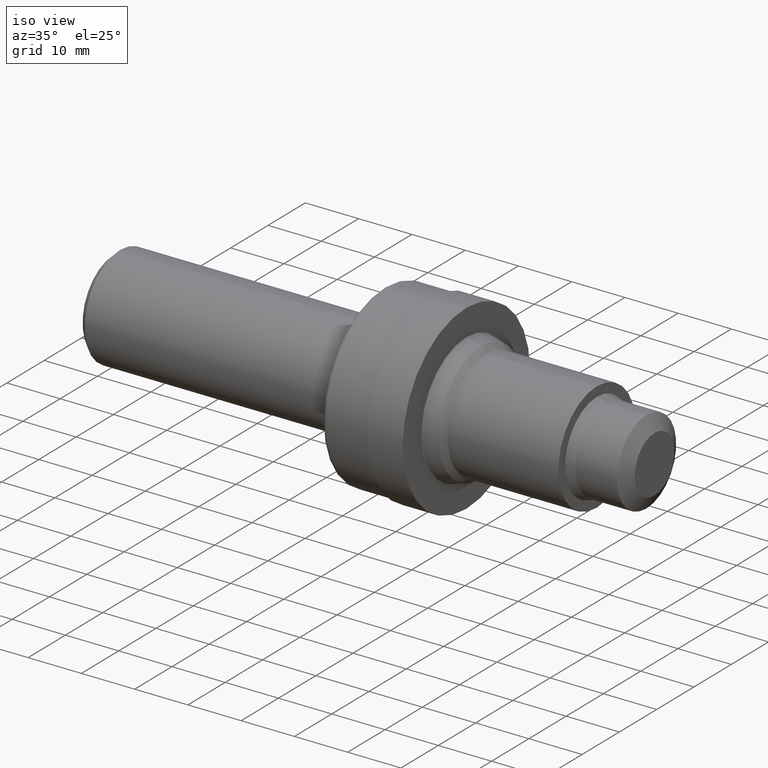
[diagram: clean part render]
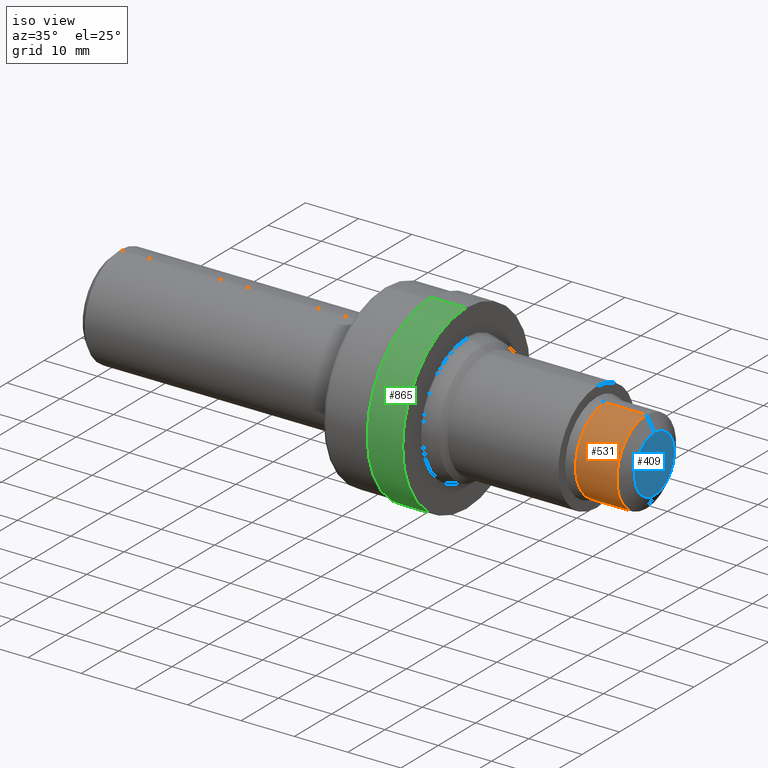
[diagram: same view with three faces highlighted in distinct colors, each labeled with its STEP entity id]
A machine part, iso view with three faces highlighted in distinct colors.
Their STEP definitions:

[orange] entity #531 — the highlighted cylindrical surface (partial cylindrical patch) has radius 7.9477 mm, axis along (-1, -0, -0).
#9 = LINE ( 'NONE', #399, #372 ) ;
#63 = ORIENTED_EDGE ( 'NONE', *, *, #222, .F. ) ;
#92 = ORIENTED_EDGE ( 'NONE', *, *, #167, .T. ) ;
#101 = VERTEX_POINT ( 'NONE', #425 ) ;
#102 = CARTESIAN_POINT ( 'NONE',  ( 3.939999999999999947, 0.0000000000000000000, 0.0000000000000000000 ) ) ;
#108 = DIRECTION ( 'NONE',  ( -1.000000000000000000, -0.0000000000000000000, -0.0000000000000000000 ) ) ;
#143 = CYLINDRICAL_SURFACE ( 'NONE', #452, 0.3129000000000000115 ) ;
#161 = FACE_OUTER_BOUND ( 'NONE', #380, .T. ) ;
#167 = EDGE_CURVE ( 'NONE', #310, #797, #661, .T. ) ;
#171 = DIRECTION ( 'NONE',  ( 0.0000000000000000000, 0.0000000000000000000, 1.000000000000000000 ) ) ;
#205 = CARTESIAN_POINT ( 'NONE',  ( 3.634999999999999787, 0.0000000000000000000, 0.3129000000000000115 ) ) ;
#222 = EDGE_CURVE ( 'NONE', #101, #638, #227, .T. ) ;
#227 = CIRCLE ( 'NONE', #483, 0.3129000000000000115 ) ;
#242 = CARTESIAN_POINT ( 'NONE',  ( 3.939999999999999947, 0.0000000000000000000, 0.3129000000000000115 ) ) ;
#251 = DIRECTION ( 'NONE',  ( -1.000000000000000000, -0.0000000000000000000, -0.0000000000000000000 ) ) ;
#253 = LINE ( 'NONE', #586, #375 ) ;
#298 = ORIENTED_EDGE ( 'NONE', *, *, #488, .F. ) ;
#310 = VERTEX_POINT ( 'NONE', #788 ) ;
#354 = AXIS2_PLACEMENT_3D ( 'NONE', #102, #578, #171 ) ;
#372 = VECTOR ( 'NONE', #459, 39.37007874015748143 ) ;
#375 = VECTOR ( 'NONE', #580, 39.37007874015748143 ) ;
#380 = EDGE_LOOP ( 'NONE', ( #298, #92, #650, #63 ) ) ;
#394 = CARTESIAN_POINT ( 'NONE',  ( 0.0000000000000000000, 0.0000000000000000000, 0.0000000000000000000 ) ) ;
#399 = CARTESIAN_POINT ( 'NONE',  ( 0.0000000000000000000, 3.831919834532068082E-17, -0.3129000000000000115 ) ) ;
#425 = CARTESIAN_POINT ( 'NONE',  ( 3.634999999999999787, 3.831919834532068082E-17, -0.3129000000000000115 ) ) ;
#452 = AXIS2_PLACEMENT_3D ( 'NONE', #394, #108, #786 ) ;
#459 = DIRECTION ( 'NONE',  ( -1.000000000000000000, -0.0000000000000000000, -0.0000000000000000000 ) ) ;
#483 = AXIS2_PLACEMENT_3D ( 'NONE', #649, #251, #713 ) ;
#488 = EDGE_CURVE ( 'NONE', #310, #101, #9, .T. ) ;
#531 = ADVANCED_FACE ( 'NONE', ( #161 ), #143, .T. ) ;
#578 = DIRECTION ( 'NONE',  ( -1.000000000000000000, -0.0000000000000000000, -0.0000000000000000000 ) ) ;
#580 = DIRECTION ( 'NONE',  ( -1.000000000000000000, -0.0000000000000000000, -0.0000000000000000000 ) ) ;
#586 = CARTESIAN_POINT ( 'NONE',  ( 0.0000000000000000000, 0.0000000000000000000, 0.3129000000000000115 ) ) ;
#638 = VERTEX_POINT ( 'NONE', #205 ) ;
#649 = CARTESIAN_POINT ( 'NONE',  ( 3.634999999999999787, 0.0000000000000000000, 0.0000000000000000000 ) ) ;
#650 = ORIENTED_EDGE ( 'NONE', *, *, #844, .T. ) ;
#661 = CIRCLE ( 'NONE', #354, 0.3129000000000000115 ) ;
#713 = DIRECTION ( 'NONE',  ( 0.0000000000000000000, 0.0000000000000000000, 1.000000000000000000 ) ) ;
#786 = DIRECTION ( 'NONE',  ( 0.0000000000000000000, 0.0000000000000000000, 1.000000000000000000 ) ) ;
#788 = CARTESIAN_POINT ( 'NONE',  ( 3.939999999999999947, 3.831919834532068698E-17, -0.3129000000000000115 ) ) ;
#797 = VERTEX_POINT ( 'NONE', #242 ) ;
#844 = EDGE_CURVE ( 'NONE', #797, #638, #253, .T. ) ;

[blue] entity #409 — the highlighted planar face has unit normal (-1, 0, -0).
#16 = CARTESIAN_POINT ( 'NONE',  ( 4.000000000000000000, 0.0000000000000000000, 0.2089769515458670124 ) ) ;
#28 = EDGE_LOOP ( 'NONE', ( #739, #575 ) ) ;
#52 = VERTEX_POINT ( 'NONE', #16 ) ;
#91 = DIRECTION ( 'NONE',  ( 0.0000000000000000000, 0.0000000000000000000, 1.000000000000000000 ) ) ;
#93 = EDGE_CURVE ( 'NONE', #725, #52, #699, .T. ) ;
#120 = FACE_OUTER_BOUND ( 'NONE', #28, .T. ) ;
#160 = CARTESIAN_POINT ( 'NONE',  ( 4.000000000000000000, 0.0000000000000000000, 0.0000000000000000000 ) ) ;
#190 = AXIS2_PLACEMENT_3D ( 'NONE', #731, #870, #474 ) ;
#409 = ADVANCED_FACE ( 'NONE', ( #120 ), #864, .F. ) ;
#421 = AXIS2_PLACEMENT_3D ( 'NONE', #160, #569, #91 ) ;
#423 = CARTESIAN_POINT ( 'NONE',  ( 4.000000000000000000, 3.195574691297121665E-17, -0.2089769515458670124 ) ) ;
#426 = AXIS2_PLACEMENT_3D ( 'NONE', #511, #772, #706 ) ;
#474 = DIRECTION ( 'NONE',  ( -0.0000000000000000000, 0.0000000000000000000, 1.000000000000000000 ) ) ;
#511 = CARTESIAN_POINT ( 'NONE',  ( 4.000000000000000000, 0.0000000000000000000, 0.0000000000000000000 ) ) ;
#569 = DIRECTION ( 'NONE',  ( -1.000000000000000000, -0.0000000000000000000, -0.0000000000000000000 ) ) ;
#575 = ORIENTED_EDGE ( 'NONE', *, *, #93, .F. ) ;
#699 = CIRCLE ( 'NONE', #421, 0.2089769515458670124 ) ;
#706 = DIRECTION ( 'NONE',  ( 0.0000000000000000000, 0.0000000000000000000, 1.000000000000000000 ) ) ;
#725 = VERTEX_POINT ( 'NONE', #423 ) ;
#731 = CARTESIAN_POINT ( 'NONE',  ( 4.000000000000000000, 0.2089769515458670124, 0.0000000000000000000 ) ) ;
#739 = ORIENTED_EDGE ( 'NONE', *, *, #811, .F. ) ;
#763 = CIRCLE ( 'NONE', #426, 0.2089769515458670124 ) ;
#772 = DIRECTION ( 'NONE',  ( -1.000000000000000000, -0.0000000000000000000, -0.0000000000000000000 ) ) ;
#811 = EDGE_CURVE ( 'NONE', #52, #725, #763, .T. ) ;
#864 = PLANE ( 'NONE',  #190 ) ;
#870 = DIRECTION ( 'NONE',  ( -1.000000000000000000, 0.0000000000000000000, -0.0000000000000000000 ) ) ;

[green] entity #865 — the highlighted cylindrical surface (partial cylindrical patch) has radius 17.0688 mm, axis along (-1, -0, -0).
#26 = LINE ( 'NONE', #591, #857 ) ;
#41 = DIRECTION ( 'NONE',  ( 0.0000000000000000000, 0.0000000000000000000, 1.000000000000000000 ) ) ;
#76 = ORIENTED_EDGE ( 'NONE', *, *, #728, .F. ) ;
#78 = AXIS2_PLACEMENT_3D ( 'NONE', #304, #700, #41 ) ;
#140 = EDGE_LOOP ( 'NONE', ( #414, #437, #431, #76 ) ) ;
#226 = VERTEX_POINT ( 'NONE', #516 ) ;
#252 = DIRECTION ( 'NONE',  ( -1.000000000000000000, -0.0000000000000000000, -0.0000000000000000000 ) ) ;
#270 = DIRECTION ( 'NONE',  ( -1.000000000000000000, -0.0000000000000000000, -0.0000000000000000000 ) ) ;
#277 = DIRECTION ( 'NONE',  ( 0.0000000000000000000, 0.0000000000000000000, 1.000000000000000000 ) ) ;
#296 = VERTEX_POINT ( 'NONE', #461 ) ;
#304 = CARTESIAN_POINT ( 'NONE',  ( 0.0000000000000000000, 0.0000000000000000000, 0.0000000000000000000 ) ) ;
#321 = CARTESIAN_POINT ( 'NONE',  ( 2.608000000000000096, 0.0000000000000000000, 0.6720000000000001528 ) ) ;
#330 = CARTESIAN_POINT ( 'NONE',  ( 0.0000000000000000000, 8.229626490270213818E-17, -0.6720000000000001528 ) ) ;
#334 = CARTESIAN_POINT ( 'NONE',  ( 2.608000000000000096, 0.0000000000000000000, 0.0000000000000000000 ) ) ;
#414 = ORIENTED_EDGE ( 'NONE', *, *, #616, .F. ) ;
#419 = DIRECTION ( 'NONE',  ( -1.000000000000000000, -0.0000000000000000000, -0.0000000000000000000 ) ) ;
#431 = ORIENTED_EDGE ( 'NONE', *, *, #520, .T. ) ;
#437 = ORIENTED_EDGE ( 'NONE', *, *, #555, .T. ) ;
#451 = CARTESIAN_POINT ( 'NONE',  ( 2.346000000000000085, 0.0000000000000000000, 0.6720000000000001528 ) ) ;
#461 = CARTESIAN_POINT ( 'NONE',  ( 2.346000000000000085, 8.229626490270213818E-17, -0.6720000000000001528 ) ) ;
#490 = VERTEX_POINT ( 'NONE', #321 ) ;
#516 = CARTESIAN_POINT ( 'NONE',  ( 2.608000000000000096, 8.229626490270213818E-17, -0.6720000000000001528 ) ) ;
#520 = EDGE_CURVE ( 'NONE', #490, #874, #26, .T. ) ;
#528 = DIRECTION ( 'NONE',  ( 0.0000000000000000000, 0.0000000000000000000, 1.000000000000000000 ) ) ;
#529 = DIRECTION ( 'NONE',  ( -1.000000000000000000, -0.0000000000000000000, -0.0000000000000000000 ) ) ;
#553 = FACE_OUTER_BOUND ( 'NONE', #140, .T. ) ;
#555 = EDGE_CURVE ( 'NONE', #226, #490, #657, .T. ) ;
#581 = AXIS2_PLACEMENT_3D ( 'NONE', #663, #419, #277 ) ;
#591 = CARTESIAN_POINT ( 'NONE',  ( 0.0000000000000000000, 0.0000000000000000000, 0.6720000000000001528 ) ) ;
#616 = EDGE_CURVE ( 'NONE', #226, #296, #796, .T. ) ;
#621 = VECTOR ( 'NONE', #529, 39.37007874015748143 ) ;
#648 = CIRCLE ( 'NONE', #581, 0.6720000000000001528 ) ;
#657 = CIRCLE ( 'NONE', #868, 0.6720000000000001528 ) ;
#663 = CARTESIAN_POINT ( 'NONE',  ( 2.346000000000000085, 0.0000000000000000000, 0.0000000000000000000 ) ) ;
#700 = DIRECTION ( 'NONE',  ( -1.000000000000000000, -0.0000000000000000000, -0.0000000000000000000 ) ) ;
#728 = EDGE_CURVE ( 'NONE', #296, #874, #648, .T. ) ;
#796 = LINE ( 'NONE', #330, #621 ) ;
#857 = VECTOR ( 'NONE', #252, 39.37007874015748143 ) ;
#861 = CYLINDRICAL_SURFACE ( 'NONE', #78, 0.6720000000000001528 ) ;
#865 = ADVANCED_FACE ( 'NONE', ( #553 ), #861, .T. ) ;
#868 = AXIS2_PLACEMENT_3D ( 'NONE', #334, #270, #528 ) ;
#874 = VERTEX_POINT ( 'NONE', #451 ) ;